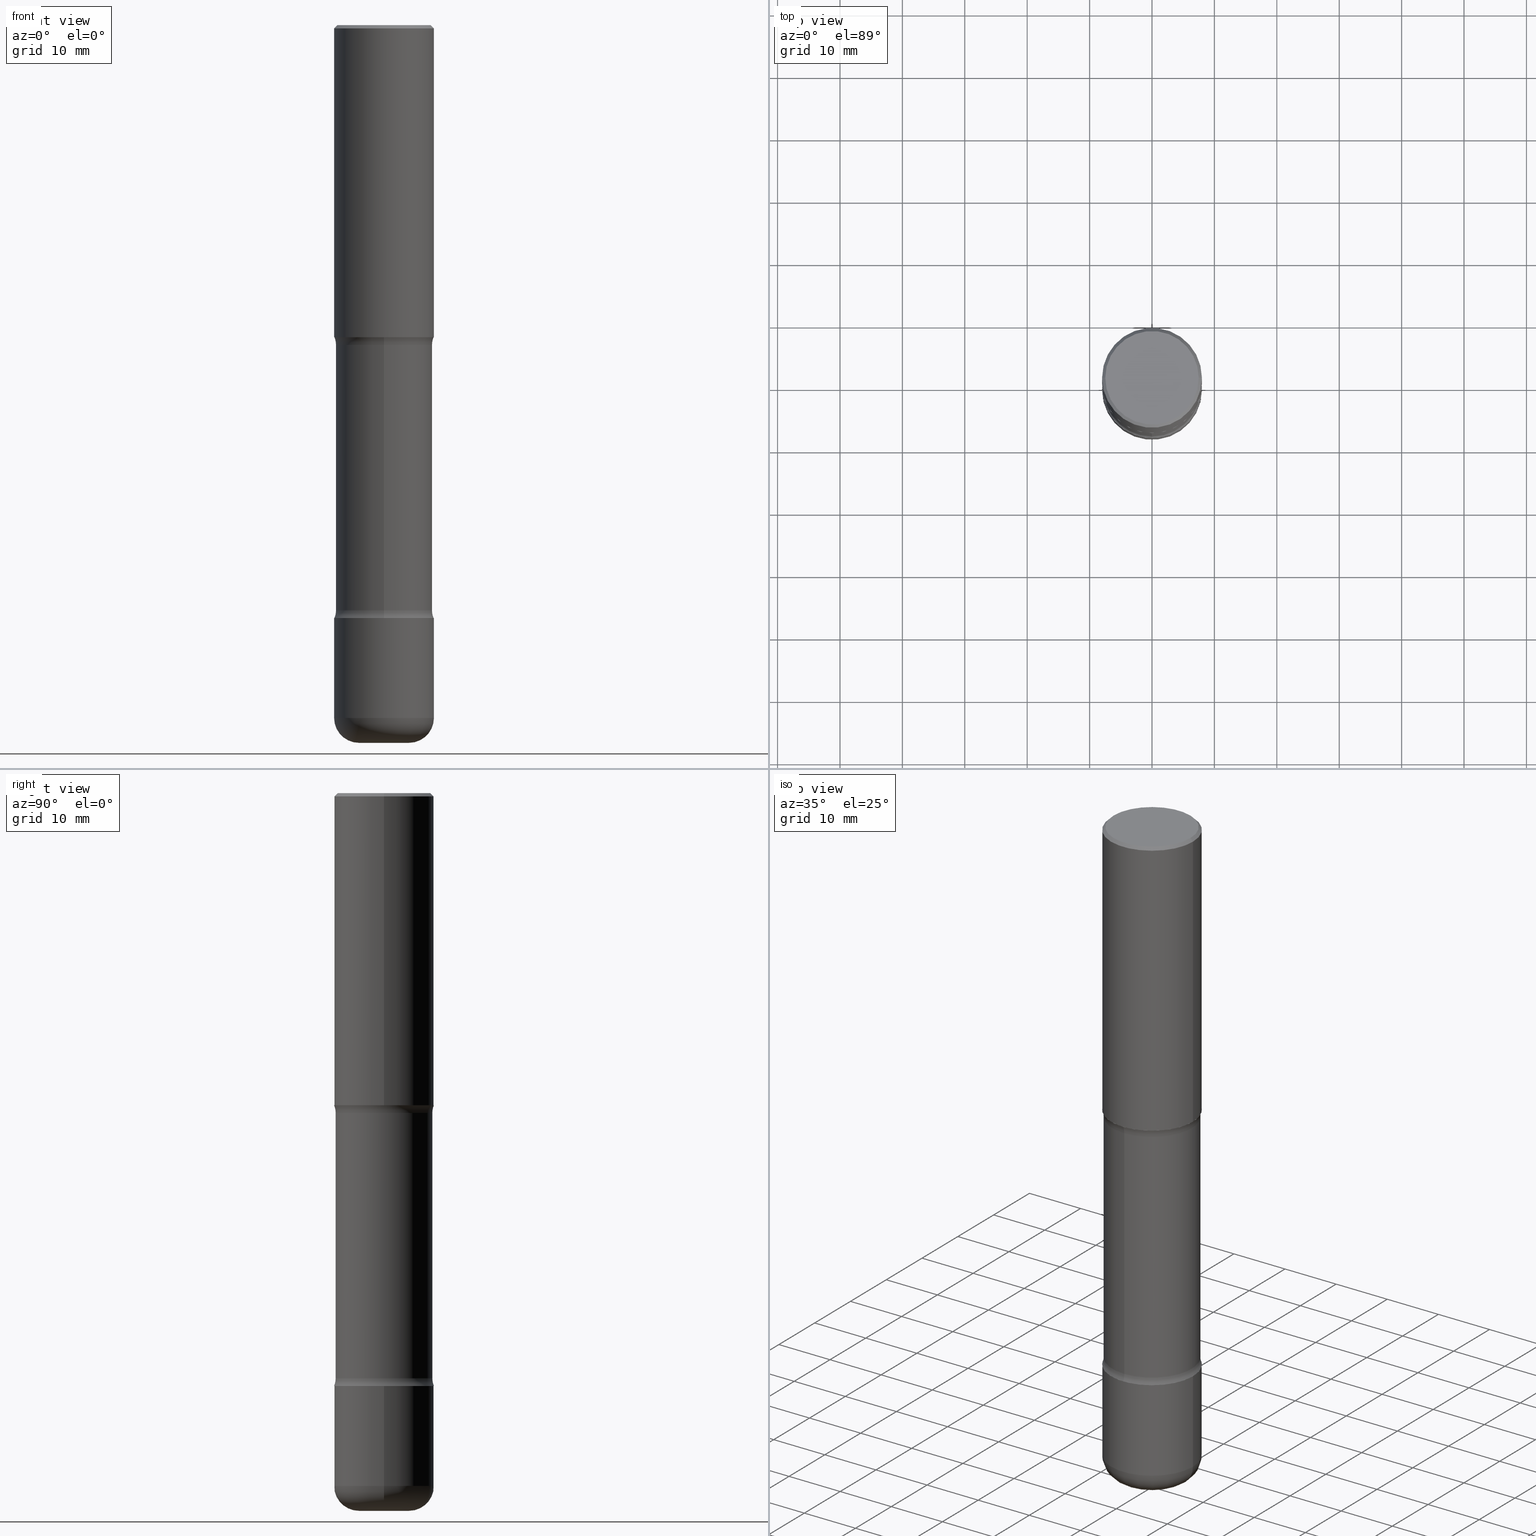
[diagram: canonical four-view strip — front | top / right | iso, engineering-drawing reading convention]
A machine part, canonical four-view strip (front | top / right | iso — engineering-drawing reading convention). The complete STEP part file that produces these views, byte-faithful:
ISO-10303-21;
HEADER;
FILE_DESCRIPTION (( 'STEP AP203' ),
    '1' );
FILE_NAME ('46936.STEP',
    '2024-03-02T06:02:06',
    ( '' ),
    ( '' ),
    'SwSTEP 2.0',
    'SolidWorks 2023',
    '' );
FILE_SCHEMA (( 'CONFIG_CONTROL_DESIGN' ));
ENDSEC;

DATA;
#1 = DATE_TIME_ROLE ( 'classification_date' ) ;
#2 = EDGE_CURVE ( 'NONE', #549, #256, #137, .T. ) ;
#3 = ORIENTED_EDGE ( 'NONE', *, *, #206, .T. ) ;
#4 = CARTESIAN_POINT ( 'NONE',  ( -2.950014139041709158E-15, -0.4300000000000070988, -2.017372256956272647 ) ) ;
#5 = FACE_OUTER_BOUND ( 'NONE', #384, .T. ) ;
#6 = VECTOR ( 'NONE', #373, 39.37007874015748143 ) ;
#7 = CONICAL_SURFACE ( 'NONE', #35, 0.3149499999999998967, 0.7853981633974460586 ) ;
#8 = CARTESIAN_POINT ( 'NONE',  ( 0.000000000000000000, 0.000000000000000000, 0.000000000000000000 ) ) ;
#9 = VERTEX_POINT ( 'NONE', #154 ) ;
#10 = EDGE_LOOP ( 'NONE', ( #198, #71, #106, #33 ) ) ;
#11 = APPROVAL ( #51, 'UNSPECIFIED' ) ;
#12 = FACE_OUTER_BOUND ( 'NONE', #220, .T. ) ;
#13 = VERTEX_POINT ( 'NONE', #327 ) ;
#14 = CARTESIAN_POINT ( 'NONE',  ( 1.112359725384078225E-28, -1.573429045124212958E-14, -4.527600000000000513 ) ) ;
#15 = DIRECTION ( 'NONE',  ( -2.445468806185136597E-29, 3.491481338843145583E-15, 1.000000000000000000 ) ) ;
#16 = EDGE_CURVE ( 'NONE', #300, #348, #167, .T. ) ;
#17 = PLANE ( 'NONE',  #21 ) ;
#18 = DIRECTION ( 'NONE',  ( 6.982962677686265922E-15, 1.000000000000000000, -3.469564049740289220E-15 ) ) ;
#19 = CARTESIAN_POINT ( 'NONE',  ( -2.950014139041668531E-15, -0.4300000000000129829, -3.691327743043725018 ) ) ;
#20 = ADVANCED_FACE ( 'NONE', ( #243 ), #156, .F. ) ;
#21 = AXIS2_PLACEMENT_3D ( 'NONE', #286, #62, #200 ) ;
#22 = AXIS2_PLACEMENT_3D ( 'NONE', #374, #105, #534 ) ;
#23 = DIRECTION ( 'NONE',  ( 2.510864649412157880E-29, -3.397830769241806549E-15, -1.000000000000000000 ) ) ;
#24 = EDGE_CURVE ( 'NONE', #382, #209, #275, .T. ) ;
#25 = ORIENTED_EDGE ( 'NONE', *, *, #518, .F. ) ;
#26 = DIRECTION ( 'NONE',  ( 6.982962677686265922E-15, 1.000000000000000000, -3.397830769241806549E-15 ) ) ;
#27 = DIRECTION ( 'NONE',  ( 1.000000000000000000, -6.982962677686267499E-15, 4.876053491004736589E-29 ) ) ;
#28 = ORIENTED_EDGE ( 'NONE', *, *, #550, .F. ) ;
#29 = PRODUCT_DEFINITION_SHAPE ( 'NONE', 'NONE',  #56 ) ;
#30 = ORIENTED_EDGE ( 'NONE', *, *, #434, .F. ) ;
#31 = AXIS2_PLACEMENT_3D ( 'NONE', #14, #289, #525 ) ;
#32 = ORIENTED_EDGE ( 'NONE', *, *, #556, .F. ) ;
#33 = ORIENTED_EDGE ( 'NONE', *, *, #441, .F. ) ;
#34 = ADVANCED_FACE ( 'NONE', ( #109 ), #63, .T. ) ;
#35 = AXIS2_PLACEMENT_3D ( 'NONE', #211, #163, #378 ) ;
#36 = ORIENTED_EDGE ( 'NONE', *, *, #134, .T. ) ;
#37 =( LENGTH_UNIT ( ) NAMED_UNIT ( * ) SI_UNIT ( $, .METRE. ) );
#38 = DIRECTION ( 'NONE',  ( 1.000000000000000000, -6.982962677686265922E-15, 0.000000000000000000 ) ) ;
#39 = DIRECTION ( 'NONE',  ( 1.000000000000000000, 0.000000000000000000, 0.000000000000000000 ) ) ;
#40 = CIRCLE ( 'NONE', #501, 0.3149500000000002298 ) ;
#41 = CC_DESIGN_APPROVAL ( #11, ( #460 ) ) ;
#42 = DIRECTION ( 'NONE',  ( -1.000000000000000000, 6.982962677686265922E-15, -4.883557194083112901E-29 ) ) ;
#43 = PERSON_AND_ORGANIZATION ( #249, #260 ) ;
#44 = DIRECTION ( 'NONE',  ( -2.445468806185136597E-29, 3.491481338843145583E-15, 1.000000000000000000 ) ) ;
#45 = CARTESIAN_POINT ( 'NONE',  ( 4.813905344975441835E-29, -6.872981015512731707E-15, -1.968500000000000139 ) ) ;
#46 = DATE_AND_TIME ( #517, #395 ) ;
#47 = CARTESIAN_POINT ( 'NONE',  ( 2.199284095337382168E-15, 0.3149499999999871291, -3.740200000000001079 ) ) ;
#48 = ADVANCED_FACE ( 'NONE', ( #339 ), #126, .T. ) ;
#49 = AXIS2_PLACEMENT_3D ( 'NONE', #8, #164, #218 ) ;
#50 = CIRCLE ( 'NONE', #117, 0.1574999999999998346 ) ;
#51 = APPROVAL_STATUS ( 'not_yet_approved' ) ;
#52 = DIRECTION ( 'NONE',  ( -2.445468806185136597E-29, 3.491481338843145583E-15, 1.000000000000000000 ) ) ;
#53 = ORIENTED_EDGE ( 'NONE', *, *, #434, .T. ) ;
#54 = DATE_AND_TIME ( #399, #452 ) ;
#55 = LINE ( 'NONE', #486, #360 ) ;
#56 = PRODUCT_DEFINITION ( 'UNKNOWN', '', #460, #398 ) ;
#57 = CARTESIAN_POINT ( 'NONE',  ( -3.131554243005663153E-46, 4.471029511141347348E-32, 1.280553747030124924E-17 ) ) ;
#58 = AXIS2_PLACEMENT_3D ( 'NONE', #45, #359, #308 ) ;
#59 = ADVANCED_FACE ( 'NONE', ( #438 ), #92, .F. ) ;
#60 = CARTESIAN_POINT ( 'NONE',  ( 9.023830806565153848E-29, -1.289277884509281722E-14, -3.691327743043726795 ) ) ;
#61 = DIRECTION ( 'NONE',  ( 6.982962677686265922E-15, 1.000000000000000000, -3.397830769241806549E-15 ) ) ;
#62 = DIRECTION ( 'NONE',  ( -2.510864649412157319E-29, 3.397830769241806549E-15, 1.000000000000000000 ) ) ;
#63 = CYLINDRICAL_SURFACE ( 'NONE', #49, 0.3149500000000002853 ) ;
#64 = CARTESIAN_POINT ( 'NONE',  ( 1.068694322990966674E-28, -1.525812259887843213E-14, -4.370100000000000762 ) ) ;
#65 = EDGE_CURVE ( 'NONE', #457, #257, #40, .T. ) ;
#66 = DIRECTION ( 'NONE',  ( 1.000000000000000000, -6.982962677686267499E-15, 4.876053491004736589E-29 ) ) ;
#67 = ORIENTED_EDGE ( 'NONE', *, *, #171, .F. ) ;
#68 = CIRCLE ( 'NONE', #394, 0.2949499999999998789 ) ;
#69 = CC_DESIGN_APPROVAL ( #516, ( #56 ) ) ;
#70 = FACE_OUTER_BOUND ( 'NONE', #463, .T. ) ;
#71 = ORIENTED_EDGE ( 'NONE', *, *, #326, .T. ) ;
#72 = LINE ( 'NONE', #155, #149 ) ;
#73 = ORIENTED_EDGE ( 'NONE', *, *, #287, .F. ) ;
#74 = VERTEX_POINT ( 'NONE', #357 ) ;
#75 = PLANE ( 'NONE',  #527 ) ;
#76 = EDGE_LOOP ( 'NONE', ( #409, #553 ) ) ;
#77 = EDGE_LOOP ( 'NONE', ( #25, #427, #436, #514 ) ) ;
#78 = CARTESIAN_POINT ( 'NONE',  ( 4.820755151858623476E-29, -7.204961388123744804E-15, -2.017372256956273979 ) ) ;
#79 = EDGE_LOOP ( 'NONE', ( #343, #379 ) ) ;
#80 = CC_DESIGN_SECURITY_CLASSIFICATION ( #370, ( #460 ) ) ;
#81 = CARTESIAN_POINT ( 'NONE',  ( 4.698043529530127941E-29, -7.038901729675425288E-15, -1.968500000000000139 ) ) ;
#82 = ORIENTED_EDGE ( 'NONE', *, *, #307, .F. ) ;
#83 = DIRECTION ( 'NONE',  ( -2.445468806185136597E-29, 3.491481338843145583E-15, 1.000000000000000000 ) ) ;
#84 = CC_DESIGN_PERSON_AND_ORGANIZATION_ASSIGNMENT ( #150, #319, ( #460 ) ) ;
#85 = ORIENTED_EDGE ( 'NONE', *, *, #335, .F. ) ;
#86 = CARTESIAN_POINT ( 'NONE',  ( 0.3149500000000000077, -2.199284095337289871E-15, 1.535751875536930130E-29 ) ) ;
#87 = AXIS2_PLACEMENT_3D ( 'NONE', #423, #337, #476 ) ;
#88 = CIRCLE ( 'NONE', #22, 0.3149500000000002298 ) ;
#89 = MANIFOLD_SOLID_BREP ( 'Body-Move/Copy2[4]', #402 ) ;
#90 = DIRECTION ( 'NONE',  ( 6.982962677686265922E-15, 1.000000000000000000, -3.397830769241806549E-15 ) ) ;
#91 = CARTESIAN_POINT ( 'NONE',  ( 0.3149500000000001743, -9.072265110850023156E-15, -1.968500000000000139 ) ) ;
#92 = PLANE ( 'NONE',  #58 ) ;
#93 = COORDINATED_UNIVERSAL_TIME_OFFSET ( 5, 0, .BEHIND. ) ;
#94 = DIRECTION ( 'NONE',  ( 6.982962677686265922E-15, 1.000000000000000000, -3.397830769241806549E-15 ) ) ;
#95 = AXIS2_PLACEMENT_3D ( 'NONE', #277, #52, #314 ) ;
#96 = CIRCLE ( 'NONE', #536, 0.3049999999999999378 ) ;
#97 = CALENDAR_DATE ( 2024, 2, 3 ) ;
#98 = CARTESIAN_POINT ( 'NONE',  ( 4.890937612370289799E-31, -6.982962677686315028E-17, -0.02000000000000006981 ) ) ;
#99 = ADVANCED_FACE ( 'NONE', ( #545 ), #508, .T. ) ;
#100 = APPROVAL_ROLE ( '' ) ;
#101 = MANIFOLD_SOLID_BREP ( 'Body-Move/Copy2[1]', #305 ) ;
#102 = LINE ( 'NONE', #235, #385 ) ;
#103 = EDGE_LOOP ( 'NONE', ( #85, #507, #238, #67 ) ) ;
#104 = ORIENTED_EDGE ( 'NONE', *, *, #532, .F. ) ;
#105 = DIRECTION ( 'NONE',  ( -2.445468806185136597E-29, 3.491481338843145583E-15, 1.000000000000000000 ) ) ;
#106 = ORIENTED_EDGE ( 'NONE', *, *, #424, .T. ) ;
#107 = AXIS2_PLACEMENT_3D ( 'NONE', #400, #273, #315 ) ;
#108 = CIRCLE ( 'NONE', #429, 0.3049999999999999933 ) ;
#109 = FACE_OUTER_BOUND ( 'NONE', #77, .T. ) ;
#110 = FACE_OUTER_BOUND ( 'NONE', #103, .T. ) ;
#111 = ADVANCED_FACE ( 'NONE', ( #414 ), #17, .F. ) ;
#112 = DIRECTION ( 'NONE',  ( -1.000000000000000000, 6.982962677686265922E-15, -4.876176775795935793E-29 ) ) ;
#113 = ORIENTED_EDGE ( 'NONE', *, *, #556, .T. ) ;
#114 = ORIENTED_EDGE ( 'NONE', *, *, #550, .T. ) ;
#115 = ADVANCED_BREP_SHAPE_REPRESENTATION ( '46936', ( #101, #143, #89, #252 ), #189 ) ;
#116 = DIRECTION ( 'NONE',  ( 1.000000000000000000, -6.860497997771530774E-15, 4.841945768327149582E-29 ) ) ;
#117 = AXIS2_PLACEMENT_3D ( 'NONE', #430, #344, #551 ) ;
#118 = DIRECTION ( 'NONE',  ( -2.445468806185136877E-29, 3.491481338843145188E-15, 1.000000000000000000 ) ) ;
#119 = PRODUCT ( '46936', '46936', '', ( #515 ) ) ;
#120 = CARTESIAN_POINT ( 'NONE',  ( 3.002673951405185326E-15, 0.4299999999999871703, -3.691327743043728571 ) ) ;
#121 = EDGE_LOOP ( 'NONE', ( #499, #212, #131, #36 ) ) ;
#122 = EDGE_CURVE ( 'NONE', #74, #422, #519, .T. ) ;
#123 = DIRECTION ( 'NONE',  ( 6.982962677686266711E-15, 1.000000000000000000, -3.582751467100674095E-15 ) ) ;
#124 = DIRECTION ( 'NONE',  ( -2.445468806185136597E-29, 3.491481338843145583E-15, 1.000000000000000000 ) ) ;
#125 = ORIENTED_EDGE ( 'NONE', *, *, #346, .F. ) ;
#126 = CYLINDRICAL_SURFACE ( 'NONE', #450, 0.3049999999999999378 ) ;
#127 = AXIS2_PLACEMENT_3D ( 'NONE', #147, #559, #362 ) ;
#128 = ADVANCED_FACE ( 'NONE', ( #70 ), #223, .T. ) ;
#129 = AXIS2_PLACEMENT_3D ( 'NONE', #182, #83, #425 ) ;
#130 = FACE_OUTER_BOUND ( 'NONE', #281, .T. ) ;
#131 = ORIENTED_EDGE ( 'NONE', *, *, #251, .T. ) ;
#132 = VERTEX_POINT ( 'NONE', #153 ) ;
#133 = DIRECTION ( 'NONE',  ( 2.438088387897960049E-29, -3.491481338843145188E-15, -1.000000000000000000 ) ) ;
#134 = EDGE_CURVE ( 'NONE', #348, #300, #341, .T. ) ;
#135 = PERSON_AND_ORGANIZATION ( #249, #260 ) ;
#136 = ORIENTED_EDGE ( 'NONE', *, *, #518, .T. ) ;
#137 = CIRCLE ( 'NONE', #468, 0.3149500000000002853 ) ;
#138 = FACE_OUTER_BOUND ( 'NONE', #261, .T. ) ;
#139 = ORIENTED_EDGE ( 'NONE', *, *, #16, .F. ) ;
#140 = APPROVAL_PERSON_ORGANIZATION ( #224, #232, #558 ) ;
#141 = EDGE_CURVE ( 'NONE', #417, #382, #282, .T. ) ;
#142 = DIRECTION ( 'NONE',  ( -6.982962677686267499E-15, -1.000000000000000000, 0.000000000000000000 ) ) ;
#143 = MANIFOLD_SOLID_BREP ( 'Body-Move/Copy2[2]', #160 ) ;
#144 = EDGE_CURVE ( 'NONE', #415, #297, #55, .T. ) ;
#145 = APPROVAL_DATE_TIME ( #192, #516 ) ;
#146 = CARTESIAN_POINT ( 'NONE',  ( -0.1574500000000002564, -1.413937306142415374E-14, -4.370100000000000762 ) ) ;
#147 = CARTESIAN_POINT ( 'NONE',  ( 1.068694322990966674E-28, -1.525812259887843213E-14, -4.370100000000000762 ) ) ;
#148 = VECTOR ( 'NONE', #118, 39.37007874015748143 ) ;
#149 = VECTOR ( 'NONE', #201, 39.37007874015748143 ) ;
#150 = PERSON_AND_ORGANIZATION ( #249, #260 ) ;
#151 = EDGE_LOOP ( 'NONE', ( #32, #3, #490, #510 ) ) ;
#152 = DIRECTION ( 'NONE',  ( -1.000000000000000000, 7.105427357601005014E-15, 0.000000000000000000 ) ) ;
#153 = CARTESIAN_POINT ( 'NONE',  ( -0.3149500000000002298, -1.192062620493334568E-14, -3.740200000000000191 ) ) ;
#154 = CARTESIAN_POINT ( 'NONE',  ( -0.2949499999999998789, 2.094539655171994924E-15, 1.280553747028672311E-17 ) ) ;
#155 = CARTESIAN_POINT ( 'NONE',  ( -0.3149500000000000077, 2.237854346276435590E-15, -1.549218606675782676E-29 ) ) ;
#156 = PLANE ( 'NONE',  #474 ) ;
#157 = CARTESIAN_POINT ( 'NONE',  ( -3.131554243005663153E-46, 4.471029511141347348E-32, 1.280553747030124924E-17 ) ) ;
#158 = AXIS2_PLACEMENT_3D ( 'NONE', #81, #215, #247 ) ;
#159 = DIRECTION ( 'NONE',  ( 1.000000000000000000, -6.982962677686265922E-15, 0.000000000000000000 ) ) ;
#160 = CLOSED_SHELL ( 'NONE', ( #210, #391, #349, #20, #203, #99 ) ) ;
#161 = TOROIDAL_SURFACE ( 'NONE', #306, 0.1574500000000002564, 0.1574999999999998346 ) ;
#162 = FACE_OUTER_BOUND ( 'NONE', #505, .T. ) ;
#163 = DIRECTION ( 'NONE',  ( 2.445468806185136597E-29, -3.491481338843145583E-15, -1.000000000000000000 ) ) ;
#164 = DIRECTION ( 'NONE',  ( -2.445468806185136597E-29, 3.491481338843145583E-15, 1.000000000000000000 ) ) ;
#165 = LINE ( 'NONE', #242, #148 ) ;
#166 = EDGE_CURVE ( 'NONE', #417, #13, #494, .T. ) ;
#167 = CIRCLE ( 'NONE', #213, 0.3149500000000003408 ) ;
#168 = CIRCLE ( 'NONE', #418, 0.3149500000000001743 ) ;
#169 = DIRECTION ( 'NONE',  ( 1.000000000000000000, -6.982962677686267499E-15, 4.876176775795936353E-29 ) ) ;
#170 = ORIENTED_EDGE ( 'NONE', *, *, #404, .T. ) ;
#171 = EDGE_CURVE ( 'NONE', #9, #333, #102, .T. ) ;
#172 =( NAMED_UNIT ( * ) SI_UNIT ( $, .STERADIAN. ) SOLID_ANGLE_UNIT ( ) );
#173 = EDGE_LOOP ( 'NONE', ( #352, #262, #459, #30 ) ) ;
#174 = EDGE_LOOP ( 'NONE', ( #426, #113, #464, #217 ) ) ;
#175 = EDGE_CURVE ( 'NONE', #297, #333, #320, .T. ) ;
#176 =( CONVERSION_BASED_UNIT ( 'INCH', #432 ) LENGTH_UNIT ( ) NAMED_UNIT ( #393 ) );
#177 = ORIENTED_EDGE ( 'NONE', *, *, #175, .F. ) ;
#178 = DIRECTION ( 'NONE',  ( 2.510864649412157880E-29, -3.397830769241806549E-15, -1.000000000000000000 ) ) ;
#179 = AXIS2_PLACEMENT_3D ( 'NONE', #535, #375, #159 ) ;
#180 = CIRCLE ( 'NONE', #313, 0.1249999999999999584 ) ;
#181 = ORIENTED_EDGE ( 'NONE', *, *, #267, .F. ) ;
#182 = CARTESIAN_POINT ( 'NONE',  ( 1.107210456688382522E-28, -1.580803090974622705E-14, -4.527600000000000513 ) ) ;
#183 = CC_DESIGN_DATE_AND_TIME_ASSIGNMENT ( #184, #1, ( #370 ) ) ;
#184 = DATE_AND_TIME ( #274, #439 ) ;
#185 = EDGE_CURVE ( 'NONE', #132, #293, #437, .T. ) ;
#186 = APPROVAL_DATE_TIME ( #54, #232 ) ;
#187 = TOROIDAL_SURFACE ( 'NONE', #484, 0.4299999999999999378, 0.1249999999999999861 ) ;
#188 = CARTESIAN_POINT ( 'NONE',  ( 0.000000000000000000, 0.000000000000000000, 0.000000000000000000 ) ) ;
#189 =( GEOMETRIC_REPRESENTATION_CONTEXT ( 3 ) GLOBAL_UNCERTAINTY_ASSIGNED_CONTEXT ( ( #266 ) ) GLOBAL_UNIT_ASSIGNED_CONTEXT ( ( #176, #351, #172 ) ) REPRESENTATION_CONTEXT ( 'NONE', 'WORKASPACE' ) );
#190 = DIRECTION ( 'NONE',  ( -2.445468806185136597E-29, 3.491481338843145583E-15, 1.000000000000000000 ) ) ;
#191 = CC_DESIGN_DATE_AND_TIME_ASSIGNMENT ( #46, #226, ( #56 ) ) ;
#192 = DATE_AND_TIME ( #481, #475 ) ;
#193 = DIRECTION ( 'NONE',  ( 6.860497997771532351E-15, 1.000000000000000000, 0.000000000000000000 ) ) ;
#194 = ADVANCED_FACE ( 'NONE', ( #138 ), #467, .F. ) ;
#195 = AXIS2_PLACEMENT_3D ( 'NONE', #64, #500, #290 ) ;
#196 = CARTESIAN_POINT ( 'NONE',  ( 2.059624841783563274E-15, 0.2949499999999998789, -1.023409652156634744E-15 ) ) ;
#197 = FACE_OUTER_BOUND ( 'NONE', #541, .T. ) ;
#198 = ORIENTED_EDGE ( 'NONE', *, *, #65, .F. ) ;
#199 = FACE_OUTER_BOUND ( 'NONE', #347, .T. ) ;
#200 = DIRECTION ( 'NONE',  ( -6.982962677686265922E-15, -1.000000000000000000, 3.397830769241806549E-15 ) ) ;
#201 = DIRECTION ( 'NONE',  ( -2.445468806185136877E-29, 3.491481338843145188E-15, 1.000000000000000000 ) ) ;
#202 = AXIS2_PLACEMENT_3D ( 'NONE', #60, #329, #495 ) ;
#203 = ADVANCED_FACE ( 'NONE', ( #197 ), #325, .F. ) ;
#204 = CARTESIAN_POINT ( 'NONE',  ( 2.129803616694359388E-15, 0.3049999999999927769, -2.017372256956274867 ) ) ;
#205 = ORIENTED_EDGE ( 'NONE', *, *, #404, .F. ) ;
#206 = EDGE_CURVE ( 'NONE', #13, #300, #312, .T. ) ;
#207 = CARTESIAN_POINT ( 'NONE',  ( 0.3149500000000002298, -1.525812259887842581E-14, -3.740200000000000191 ) ) ;
#208 = EDGE_LOOP ( 'NONE', ( #296, #136, #205, #82 ) ) ;
#209 = VERTEX_POINT ( 'NONE', #407 ) ;
#210 = ADVANCED_FACE ( 'NONE', ( #5 ), #526, .T. ) ;
#211 = CARTESIAN_POINT ( 'NONE',  ( 4.890937612370289799E-31, -6.982962677686315028E-17, -0.02000000000000006981 ) ) ;
#212 = ORIENTED_EDGE ( 'NONE', *, *, #166, .F. ) ;
#213 = AXIS2_PLACEMENT_3D ( 'NONE', #283, #533, #18 ) ;
#214 = CC_DESIGN_APPROVAL ( #232, ( #370 ) ) ;
#215 = DIRECTION ( 'NONE',  ( 2.510864649412157880E-29, -3.397830769241806549E-15, -1.000000000000000000 ) ) ;
#216 = CARTESIAN_POINT ( 'NONE',  ( 1.107210456688382522E-28, -1.580803090974622705E-14, -4.527600000000000513 ) ) ;
#217 = ORIENTED_EDGE ( 'NONE', *, *, #424, .F. ) ;
#218 = DIRECTION ( 'NONE',  ( 1.000000000000000000, -6.982962677686267499E-15, 4.876176775795936353E-29 ) ) ;
#219 = ADVANCED_FACE ( 'NONE', ( #225 ), #187, .F. ) ;
#220 = EDGE_LOOP ( 'NONE', ( #334, #548, #264, #104 ) ) ;
#221 = AXIS2_PLACEMENT_3D ( 'NONE', #146, #403, #152 ) ;
#222 = LINE ( 'NONE', #440, #410 ) ;
#223 = CYLINDRICAL_SURFACE ( 'NONE', #31, 0.3049999999999999378 ) ;
#224 = PERSON_AND_ORGANIZATION ( #249, #260 ) ;
#225 = FACE_OUTER_BOUND ( 'NONE', #121, .T. ) ;
#226 = DATE_TIME_ROLE ( 'creation_date' ) ;
#227 = AXIS2_PLACEMENT_3D ( 'NONE', #524, #483, #94 ) ;
#228 = AXIS2_PLACEMENT_3D ( 'NONE', #255, #462, #26 ) ;
#229 = DIRECTION ( 'NONE',  ( -0.7071067811865459074, 2.468850131082240100E-15, -0.7071067811865491270 ) ) ;
#230 = CIRCLE ( 'NONE', #195, 0.3149500000000002853 ) ;
#231 = APPROVAL_STATUS ( 'not_yet_approved' ) ;
#232 = APPROVAL ( #231, 'UNSPECIFIED' ) ;
#233 = DIRECTION ( 'NONE',  ( -2.438088387897960049E-29, 3.491481338843145188E-15, 1.000000000000000000 ) ) ;
#234 = EDGE_CURVE ( 'NONE', #13, #209, #237, .T. ) ;
#235 = CARTESIAN_POINT ( 'NONE',  ( -0.3149499999999998967, 2.129454468560425784E-15, -0.02000000000000006981 ) ) ;
#236 = ORIENTED_EDGE ( 'NONE', *, *, #441, .T. ) ;
#237 = LINE ( 'NONE', #371, #259 ) ;
#238 = ORIENTED_EDGE ( 'NONE', *, *, #175, .T. ) ;
#239 = AXIS2_PLACEMENT_3D ( 'NONE', #4, #271, #193 ) ;
#240 = CIRCLE ( 'NONE', #285, 0.3149500000000002298 ) ;
#241 = ORIENTED_EDGE ( 'NONE', *, *, #134, .F. ) ;
#242 = CARTESIAN_POINT ( 'NONE',  ( 0.3149500000000002853, -2.199284095337291843E-15, 1.535751875536931531E-29 ) ) ;
#243 = FACE_OUTER_BOUND ( 'NONE', #79, .T. ) ;
#244 = CARTESIAN_POINT ( 'NONE',  ( 9.146542428893648262E-29, -1.305883850354113437E-14, -3.740200000000000191 ) ) ;
#245 = ORIENTED_EDGE ( 'NONE', *, *, #122, .T. ) ;
#246 = ADVANCED_FACE ( 'NONE', ( #12 ), #368, .T. ) ;
#247 = DIRECTION ( 'NONE',  ( 6.982962677686265922E-15, 1.000000000000000000, -3.469564049740289220E-15 ) ) ;
#248 = DIRECTION ( 'NONE',  ( 1.000000000000000000, -6.982962677686268288E-15, 4.883557194083114022E-29 ) ) ;
#249 = PERSON ( 'UNSPECIFIED', 'UNSPECIFIED', 'UNSPECIFIED', ('UNSPECIFIED'), ('UNSPECIFIED'), ('UNSPECIFIED') ) ;
#250 = AXIS2_PLACEMENT_3D ( 'NONE', #489, #190, #364 ) ;
#251 = EDGE_CURVE ( 'NONE', #417, #348, #444, .T. ) ;
#252 = AXIS2_PLACEMENT_3D ( 'NONE', #265, #435, #39 ) ;
#253 = VERTEX_POINT ( 'NONE', #91 ) ;
#254 = CARTESIAN_POINT ( 'NONE',  ( 2.199284095337339175E-15, 0.3149499999999932909, -1.968500000000001249 ) ) ;
#255 = CARTESIAN_POINT ( 'NONE',  ( 9.027026849019217051E-29, -1.288820193039115935E-14, -3.691327743043726795 ) ) ;
#256 = VERTEX_POINT ( 'NONE', #443 ) ;
#257 = VERTEX_POINT ( 'NONE', #47 ) ;
#258 = EDGE_LOOP ( 'NONE', ( #181, #245, #511, #125 ) ) ;
#259 = VECTOR ( 'NONE', #529, 39.37007874015748143 ) ;
#260 = ORGANIZATION ( 'UNSPECIFIED', 'UNSPECIFIED', '' ) ;
#261 = EDGE_LOOP ( 'NONE', ( #389, #291, #236, #466 ) ) ;
#262 = ORIENTED_EDGE ( 'NONE', *, *, #270, .T. ) ;
#263 = DIRECTION ( 'NONE',  ( -2.445468806185136877E-29, 3.491481338843145188E-15, 1.000000000000000000 ) ) ;
#264 = ORIENTED_EDGE ( 'NONE', *, *, #2, .F. ) ;
#265 = CARTESIAN_POINT ( 'NONE',  ( 0.000000000000000000, 0.000000000000000000, 0.000000000000000000 ) ) ;
#266 = UNCERTAINTY_MEASURE_WITH_UNIT (LENGTH_MEASURE( 1.000000000000000082E-05 ), #176, 'distance_accuracy_value', 'NONE');
#267 = EDGE_CURVE ( 'NONE', #74, #256, #512, .T. ) ;
#268 = AXIS2_PLACEMENT_3D ( 'NONE', #216, #133, #388 ) ;
#269 = DIRECTION ( 'NONE',  ( -2.445468806185136877E-29, 3.491481338843145188E-15, 1.000000000000000000 ) ) ;
#270 = EDGE_CURVE ( 'NONE', #503, #253, #353, .T. ) ;
#271 = DIRECTION ( 'NONE',  ( 1.000000000000000000, -6.860497997771530774E-15, 4.841945768327149582E-29 ) ) ;
#272 = COORDINATED_UNIVERSAL_TIME_OFFSET ( 5, 0, .BEHIND. ) ;
#273 = DIRECTION ( 'NONE',  ( 2.510864649412157880E-29, -3.397830769241806549E-15, -1.000000000000000000 ) ) ;
#274 = CALENDAR_DATE ( 2024, 2, 3 ) ;
#275 = CIRCLE ( 'NONE', #202, 0.3049999999999999378 ) ;
#276 = CIRCLE ( 'NONE', #129, 0.1574500000000002842 ) ;
#277 = CARTESIAN_POINT ( 'NONE',  ( 9.146542428893648262E-29, -1.305883850354113437E-14, -3.740200000000000191 ) ) ;
#278 = APPROVAL_ROLE ( '' ) ;
#279 = DIRECTION ( 'NONE',  ( 1.000000000000000000, -6.982962677686265922E-15, 0.000000000000000000 ) ) ;
#280 = PERSON_AND_ORGANIZATION ( #249, #260 ) ;
#281 = EDGE_LOOP ( 'NONE', ( #471, #304 ) ) ;
#282 = LINE ( 'NONE', #449, #6 ) ;
#283 = CARTESIAN_POINT ( 'NONE',  ( 4.698043529530127941E-29, -7.038901729675425288E-15, -1.968500000000000139 ) ) ;
#284 = CARTESIAN_POINT ( 'NONE',  ( 0.3149499999999998967, -2.230543471175006266E-15, -0.02000000000000006981 ) ) ;
#285 = AXIS2_PLACEMENT_3D ( 'NONE', #330, #23, #531 ) ;
#286 = CARTESIAN_POINT ( 'NONE',  ( 9.146542428893648262E-29, -1.305883850354113437E-14, -3.740200000000000191 ) ) ;
#287 = EDGE_CURVE ( 'NONE', #9, #415, #68, .T. ) ;
#288 = DIRECTION ( 'NONE',  ( 2.510864649412157880E-29, -3.397830769241806549E-15, -1.000000000000000000 ) ) ;
#289 = DIRECTION ( 'NONE',  ( 2.510864649412157880E-29, -3.397830769241806549E-15, -1.000000000000000000 ) ) ;
#290 = DIRECTION ( 'NONE',  ( 1.000000000000000000, -6.982962677686263555E-15, 0.000000000000000000 ) ) ;
#291 = ORIENTED_EDGE ( 'NONE', *, *, #396, .F. ) ;
#292 = CC_DESIGN_PERSON_AND_ORGANIZATION_ASSIGNMENT ( #43, #448, ( #56 ) ) ;
#293 = VERTEX_POINT ( 'NONE', #207 ) ;
#294 = LOCAL_TIME ( 1, 2, 6.000000000000000000, #479 ) ;
#295 = DIRECTION ( 'NONE',  ( -2.445468806185136597E-29, 3.491481338843145583E-15, 1.000000000000000000 ) ) ;
#296 = ORIENTED_EDGE ( 'NONE', *, *, #2, .T. ) ;
#297 = VERTEX_POINT ( 'NONE', #284 ) ;
#298 = CARTESIAN_POINT ( 'NONE',  ( 1.112359725384078225E-28, -1.573429045124212958E-14, -4.527600000000000513 ) ) ;
#299 = CYLINDRICAL_SURFACE ( 'NONE', #361, 0.3149500000000002853 ) ;
#300 = VERTEX_POINT ( 'NONE', #492 ) ;
#301 = ORIENTED_EDGE ( 'NONE', *, *, #141, .F. ) ;
#302 = CARTESIAN_POINT ( 'NONE',  ( 0.3149500000000001743, -1.745740669421572357E-14, -4.370100000000000762 ) ) ;
#303 = ORIENTED_EDGE ( 'NONE', *, *, #171, .T. ) ;
#304 = ORIENTED_EDGE ( 'NONE', *, *, #122, .F. ) ;
#305 = CLOSED_SHELL ( 'NONE', ( #522, #246, #482, #311, #34, #309 ) ) ;
#306 = AXIS2_PLACEMENT_3D ( 'NONE', #381, #15, #248 ) ;
#307 = EDGE_CURVE ( 'NONE', #549, #293, #165, .T. ) ;
#308 = DIRECTION ( 'NONE',  ( 6.982962677686265922E-15, 1.000000000000000000, -3.397830769241806549E-15 ) ) ;
#309 = ADVANCED_FACE ( 'NONE', ( #162 ), #75, .F. ) ;
#310 = PERSON_AND_ORGANIZATION_ROLE ( 'design_owner' ) ;
#311 = ADVANCED_FACE ( 'NONE', ( #413 ), #161, .T. ) ;
#312 = CIRCLE ( 'NONE', #239, 0.1249999999999999584 ) ;
#313 = AXIS2_PLACEMENT_3D ( 'NONE', #120, #42, #473 ) ;
#314 = DIRECTION ( 'NONE',  ( 1.000000000000000000, -6.982962677686264344E-15, 0.000000000000000000 ) ) ;
#315 = DIRECTION ( 'NONE',  ( 6.982962677686266711E-15, 1.000000000000000000, -3.582751467100673306E-15 ) ) ;
#316 = APPLICATION_CONTEXT ( 'configuration controlled 3d designs of mechanical parts and assemblies' ) ;
#317 = DATE_AND_TIME ( #97, #294 ) ;
#318 = DIRECTION ( 'NONE',  ( -2.445468806185136597E-29, 3.491481338843145583E-15, 1.000000000000000000 ) ) ;
#319 = PERSON_AND_ORGANIZATION_ROLE ( 'design_supplier' ) ;
#320 = CIRCLE ( 'NONE', #428, 0.3149499999999998967 ) ;
#321 = CIRCLE ( 'NONE', #513, 0.3149499999999998967 ) ;
#322 = DIRECTION ( 'NONE',  ( -1.000000000000000000, 6.982962677686265922E-15, -4.883557194083112901E-29 ) ) ;
#323 = SECURITY_CLASSIFICATION_LEVEL ( 'unclassified' ) ;
#324 = ORIENTED_EDGE ( 'NONE', *, *, #144, .F. ) ;
#325 = PLANE ( 'NONE',  #408 ) ;
#326 = EDGE_CURVE ( 'NONE', #457, #209, #555, .T. ) ;
#327 = CARTESIAN_POINT ( 'NONE',  ( -2.126582866859183647E-15, -0.3050000000000072098, -2.017372256956272647 ) ) ;
#328 = DIRECTION ( 'NONE',  ( 2.438088387897960049E-29, -3.491481338843145188E-15, -1.000000000000000000 ) ) ;
#329 = DIRECTION ( 'NONE',  ( 2.510864649412157880E-29, -3.397830769241806549E-15, -1.000000000000000000 ) ) ;
#330 = CARTESIAN_POINT ( 'NONE',  ( 9.146542428893648262E-29, -1.305883850354113437E-14, -3.740200000000000191 ) ) ;
#331 = VECTOR ( 'NONE', #269, 39.37007874015748143 ) ;
#332 = CARTESIAN_POINT ( 'NONE',  ( 0.2949499999999998789, -2.127023677808859286E-15, 1.280553747031588939E-17 ) ) ;
#333 = VERTEX_POINT ( 'NONE', #419 ) ;
#334 = ORIENTED_EDGE ( 'NONE', *, *, #487, .T. ) ;
#335 = EDGE_CURVE ( 'NONE', #415, #9, #504, .T. ) ;
#336 = CARTESIAN_POINT ( 'NONE',  ( 9.023830806565153848E-29, -1.289277884509281722E-14, -3.691327743043726795 ) ) ;
#337 = DIRECTION ( 'NONE',  ( -2.445468806185136597E-29, 3.491481338843145583E-15, 1.000000000000000000 ) ) ;
#338 = ORIENTED_EDGE ( 'NONE', *, *, #24, .F. ) ;
#339 = FACE_OUTER_BOUND ( 'NONE', #174, .T. ) ;
#340 = CARTESIAN_POINT ( 'NONE',  ( 4.890937612370289799E-31, -6.982962677686315028E-17, -0.02000000000000006981 ) ) ;
#341 = CIRCLE ( 'NONE', #158, 0.3149500000000003408 ) ;
#342 = AXIS2_PLACEMENT_3D ( 'NONE', #157, #295, #66 ) ;
#343 = ORIENTED_EDGE ( 'NONE', *, *, #287, .T. ) ;
#344 = DIRECTION ( 'NONE',  ( -6.982962677686266711E-15, -1.000000000000000000, 3.491481338843145583E-15 ) ) ;
#345 = ORIENTED_EDGE ( 'NONE', *, *, #270, .F. ) ;
#346 = EDGE_CURVE ( 'NONE', #256, #549, #230, .T. ) ;
#347 = EDGE_LOOP ( 'NONE', ( #324, #73, #303, #53 ) ) ;
#348 = VERTEX_POINT ( 'NONE', #254 ) ;
#349 = ADVANCED_FACE ( 'NONE', ( #199 ), #496, .T. ) ;
#350 = APPLICATION_CONTEXT ( 'configuration controlled 3d designs of mechanical parts and assemblies' ) ;
#351 =( NAMED_UNIT ( * ) PLANE_ANGLE_UNIT ( ) SI_UNIT ( $, .RADIAN. ) );
#352 = ORIENTED_EDGE ( 'NONE', *, *, #401, .F. ) ;
#353 = CIRCLE ( 'NONE', #250, 0.3149500000000001743 ) ;
#354 = DIRECTION ( 'NONE',  ( 6.982962677686264344E-15, 1.000000000000000000, -3.469564049740290403E-15 ) ) ;
#355 = AXIS2_PLACEMENT_3D ( 'NONE', #540, #288, #61 ) ;
#356 = PLANE ( 'NONE',  #268 ) ;
#357 = CARTESIAN_POINT ( 'NONE',  ( -0.1574500000000002842, -1.385477481244697319E-14, -4.527600000000000513 ) ) ;
#358 = DIRECTION ( 'NONE',  ( -2.445468806185136597E-29, 3.491481338843145583E-15, 1.000000000000000000 ) ) ;
#359 = DIRECTION ( 'NONE',  ( 2.510864649412157319E-29, -3.397830769241806549E-15, -1.000000000000000000 ) ) ;
#360 = VECTOR ( 'NONE', #442, 39.37007874015748143 ) ;
#361 = AXIS2_PLACEMENT_3D ( 'NONE', #392, #124, #169 ) ;
#362 = DIRECTION ( 'NONE',  ( 1.000000000000000000, -6.982962677686268288E-15, 4.883557194083114022E-29 ) ) ;
#363 = APPROVAL_STATUS ( 'not_yet_approved' ) ;
#364 = DIRECTION ( 'NONE',  ( 1.000000000000000000, -6.982962677686269866E-15, 0.000000000000000000 ) ) ;
#365 = CARTESIAN_POINT ( 'NONE',  ( 4.813905344975441835E-29, -6.872981015512731707E-15, -1.968500000000000139 ) ) ;
#366 = PRODUCT_RELATED_PRODUCT_CATEGORY ( 'detail', '', ( #119 ) ) ;
#367 = PERSON_AND_ORGANIZATION ( #249, #260 ) ;
#368 = TOROIDAL_SURFACE ( 'NONE', #127, 0.1574500000000002564, 0.1574999999999998346 ) ;
#369 = ORIENTED_EDGE ( 'NONE', *, *, #166, .T. ) ;
#370 = SECURITY_CLASSIFICATION ( '', '', #323 ) ;
#371 = CARTESIAN_POINT ( 'NONE',  ( -2.092451889320205392E-15, -0.3050000000000157030, -4.527599999999998737 ) ) ;
#372 = DIRECTION ( 'NONE',  ( 1.000000000000000000, -6.982962677686263555E-15, 0.000000000000000000 ) ) ;
#373 = DIRECTION ( 'NONE',  ( 2.510864649412157600E-29, -3.397830769241806549E-15, -1.000000000000000000 ) ) ;
#374 = CARTESIAN_POINT ( 'NONE',  ( 9.146542428893648262E-29, -1.305883850354113437E-14, -3.740200000000000191 ) ) ;
#375 = DIRECTION ( 'NONE',  ( -2.445468806185136597E-29, 3.491481338843145583E-15, 1.000000000000000000 ) ) ;
#376 = ADVANCED_FACE ( 'NONE', ( #456 ), #560, .F. ) ;
#377 = DIRECTION ( 'NONE',  ( 6.860497997771532351E-15, 1.000000000000000000, 0.000000000000000000 ) ) ;
#378 = DIRECTION ( 'NONE',  ( -1.000000000000000000, 6.982962677686265922E-15, 0.000000000000000000 ) ) ;
#379 = ORIENTED_EDGE ( 'NONE', *, *, #335, .T. ) ;
#380 = ORIENTED_EDGE ( 'NONE', *, *, #470, .F. ) ;
#381 = CARTESIAN_POINT ( 'NONE',  ( 1.068694322990966674E-28, -1.525812259887843213E-14, -4.370100000000000762 ) ) ;
#382 = VERTEX_POINT ( 'NONE', #421 ) ;
#383 = LINE ( 'NONE', #86, #331 ) ;
#384 = EDGE_LOOP ( 'NONE', ( #114, #412, #177, #380 ) ) ;
#385 = VECTOR ( 'NONE', #229, 39.37007874015748143 ) ;
#386 = APPROVAL_PERSON_ORGANIZATION ( #280, #516, #278 ) ;
#387 = DIRECTION ( 'NONE',  ( 2.510864649412157880E-29, -3.397830769241806549E-15, -1.000000000000000000 ) ) ;
#388 = DIRECTION ( 'NONE',  ( -1.000000000000000000, 6.982962677686265922E-15, -4.876176775795935793E-29 ) ) ;
#389 = ORIENTED_EDGE ( 'NONE', *, *, #326, .F. ) ;
#390 = DIRECTION ( 'NONE',  ( 2.510864649412157880E-29, -3.397830769241806549E-15, -1.000000000000000000 ) ) ;
#391 = ADVANCED_FACE ( 'NONE', ( #110 ), #7, .T. ) ;
#392 = CARTESIAN_POINT ( 'NONE',  ( 0.000000000000000000, 0.000000000000000000, 0.000000000000000000 ) ) ;
#393 = DIMENSIONAL_EXPONENTS ( 1.000000000000000000, 0.000000000000000000, 0.000000000000000000, 0.000000000000000000, 0.000000000000000000, 0.000000000000000000, 0.000000000000000000 ) ;
#394 = AXIS2_PLACEMENT_3D ( 'NONE', #57, #318, #27 ) ;
#395 = LOCAL_TIME ( 1, 2, 6.000000000000000000, #520 ) ;
#396 = EDGE_CURVE ( 'NONE', #257, #457, #240, .T. ) ;
#397 = APPLICATION_PROTOCOL_DEFINITION ( 'international standard', 'config_control_design', 1994, #316 ) ;
#398 = DESIGN_CONTEXT ( 'detailed design', #350, 'design' ) ;
#399 = CALENDAR_DATE ( 2024, 2, 3 ) ;
#400 = CARTESIAN_POINT ( 'NONE',  ( 4.820755151858623476E-29, -7.204961388123744804E-15, -2.017372256956273979 ) ) ;
#401 = EDGE_CURVE ( 'NONE', #503, #333, #72, .T. ) ;
#402 = CLOSED_SHELL ( 'NONE', ( #128, #376, #420, #219, #59, #111, #194, #48 ) ) ;
#403 = DIRECTION ( 'NONE',  ( 7.105427357601001859E-15, 1.000000000000000000, -3.491481338843145583E-15 ) ) ;
#404 = EDGE_CURVE ( 'NONE', #293, #132, #88, .T. ) ;
#405 = DIRECTION ( 'NONE',  ( 1.000000000000000000, -6.982962677686265922E-15, 4.876176775795935793E-29 ) ) ;
#406 = PERSON_AND_ORGANIZATION ( #249, #260 ) ;
#407 = CARTESIAN_POINT ( 'NONE',  ( -2.126582866859139470E-15, -0.3050000000000128719, -3.691327743043725906 ) ) ;
#408 = AXIS2_PLACEMENT_3D ( 'NONE', #365, #233, #405 ) ;
#409 = ORIENTED_EDGE ( 'NONE', *, *, #396, .T. ) ;
#410 = VECTOR ( 'NONE', #263, 39.37007874015748143 ) ;
#411 = DIRECTION ( 'NONE',  ( 1.000000000000000000, -6.982962677686266711E-15, 4.876176775795936353E-29 ) ) ;
#412 = ORIENTED_EDGE ( 'NONE', *, *, #401, .T. ) ;
#413 = FACE_OUTER_BOUND ( 'NONE', #258, .T. ) ;
#414 = FACE_OUTER_BOUND ( 'NONE', #76, .T. ) ;
#415 = VERTEX_POINT ( 'NONE', #332 ) ;
#416 = DIRECTION ( 'NONE',  ( 2.445468806185136597E-29, -3.491481338843145583E-15, -1.000000000000000000 ) ) ;
#417 = VERTEX_POINT ( 'NONE', #204 ) ;
#418 = AXIS2_PLACEMENT_3D ( 'NONE', #506, #358, #465 ) ;
#419 = CARTESIAN_POINT ( 'NONE',  ( -0.3149499999999998967, 2.129454468560425784E-15, -0.02000000000000006981 ) ) ;
#420 = ADVANCED_FACE ( 'NONE', ( #453 ), #537, .F. ) ;
#421 = CARTESIAN_POINT ( 'NONE',  ( 2.129803616694401198E-15, 0.3049999999999870592, -3.691327743043728127 ) ) ;
#422 = VERTEX_POINT ( 'NONE', #455 ) ;
#423 = CARTESIAN_POINT ( 'NONE',  ( 0.000000000000000000, 0.000000000000000000, 0.000000000000000000 ) ) ;
#424 = EDGE_CURVE ( 'NONE', #209, #382, #96, .T. ) ;
#425 = DIRECTION ( 'NONE',  ( 1.000000000000000000, -6.982962677686265922E-15, 0.000000000000000000 ) ) ;
#426 = ORIENTED_EDGE ( 'NONE', *, *, #234, .F. ) ;
#427 = ORIENTED_EDGE ( 'NONE', *, *, #346, .T. ) ;
#428 = AXIS2_PLACEMENT_3D ( 'NONE', #98, #446, #279 ) ;
#429 = AXIS2_PLACEMENT_3D ( 'NONE', #78, #390, #547 ) ;
#430 = CARTESIAN_POINT ( 'NONE',  ( 0.1574500000000002564, -1.635759007248013688E-14, -4.370100000000000762 ) ) ;
#431 = CC_DESIGN_PERSON_AND_ORGANIZATION_ASSIGNMENT ( #135, #310, ( #119 ) ) ;
#432 = LENGTH_MEASURE_WITH_UNIT ( LENGTH_MEASURE( 0.02539999999999999897 ), #37 );
#433 = ORIENTED_EDGE ( 'NONE', *, *, #185, .T. ) ;
#434 = EDGE_CURVE ( 'NONE', #333, #297, #321, .T. ) ;
#435 = DIRECTION ( 'NONE',  ( 0.000000000000000000, 0.000000000000000000, 1.000000000000000000 ) ) ;
#436 = ORIENTED_EDGE ( 'NONE', *, *, #307, .T. ) ;
#437 = CIRCLE ( 'NONE', #95, 0.3149500000000002298 ) ;
#438 = FACE_OUTER_BOUND ( 'NONE', #498, .T. ) ;
#439 = LOCAL_TIME ( 1, 2, 6.000000000000000000, #93 ) ;
#440 = CARTESIAN_POINT ( 'NONE',  ( -0.3149500000000002853, 2.237854346276437562E-15, -1.549218606675783797E-29 ) ) ;
#441 = EDGE_CURVE ( 'NONE', #257, #382, #180, .T. ) ;
#442 = DIRECTION ( 'NONE',  ( 0.7071067811865459074, -7.319954787623249734E-15, -0.7071067811865491270 ) ) ;
#443 = CARTESIAN_POINT ( 'NONE',  ( -0.3149500000000001743, -1.302026825260199614E-14, -4.370100000000000762 ) ) ;
#444 = CIRCLE ( 'NONE', #554, 0.1249999999999999584 ) ;
#445 = COORDINATED_UNIVERSAL_TIME_OFFSET ( 5, 0, .BEHIND. ) ;
#446 = DIRECTION ( 'NONE',  ( -2.445468806185136597E-29, 3.491481338843145583E-15, 1.000000000000000000 ) ) ;
#447 = APPROVAL_DATE_TIME ( #317, #11 ) ;
#448 = PERSON_AND_ORGANIZATION_ROLE ( 'creator' ) ;
#449 = CARTESIAN_POINT ( 'NONE',  ( 2.129803616694422103E-15, 0.3049999999999842282, -4.527600000000001401 ) ) ;
#450 = AXIS2_PLACEMENT_3D ( 'NONE', #298, #387, #123 ) ;
#451 = DIRECTION ( 'NONE',  ( -2.445468806185136597E-29, 3.491481338843145583E-15, 1.000000000000000000 ) ) ;
#452 = LOCAL_TIME ( 1, 2, 6.000000000000000000, #445 ) ;
#453 = FACE_OUTER_BOUND ( 'NONE', #151, .T. ) ;
#454 = DIRECTION ( 'NONE',  ( 2.438088387897960049E-29, -3.491481338843145188E-15, -1.000000000000000000 ) ) ;
#455 = CARTESIAN_POINT ( 'NONE',  ( 0.1574500000000002842, -1.690749838334792865E-14, -4.527600000000000513 ) ) ;
#456 = FACE_OUTER_BOUND ( 'NONE', #10, .T. ) ;
#457 = VERTEX_POINT ( 'NONE', #472 ) ;
#458 = DIRECTION ( 'NONE',  ( 2.510864649412157880E-29, -3.397830769241806549E-15, -1.000000000000000000 ) ) ;
#459 = ORIENTED_EDGE ( 'NONE', *, *, #470, .T. ) ;
#460 = PRODUCT_DEFINITION_FORMATION_WITH_SPECIFIED_SOURCE ( 'ANY', '', #119, .NOT_KNOWN. ) ;
#461 = ORIENTED_EDGE ( 'NONE', *, *, #234, .T. ) ;
#462 = DIRECTION ( 'NONE',  ( 2.510864649412157880E-29, -3.397830769241806549E-15, -1.000000000000000000 ) ) ;
#463 = EDGE_LOOP ( 'NONE', ( #369, #461, #338, #301 ) ) ;
#464 = ORIENTED_EDGE ( 'NONE', *, *, #141, .T. ) ;
#465 = DIRECTION ( 'NONE',  ( 1.000000000000000000, -6.982962677686269866E-15, 0.000000000000000000 ) ) ;
#466 = ORIENTED_EDGE ( 'NONE', *, *, #24, .T. ) ;
#467 = TOROIDAL_SURFACE ( 'NONE', #227, 0.4300000000000000488, 0.1249999999999999861 ) ;
#468 = AXIS2_PLACEMENT_3D ( 'NONE', #530, #451, #372 ) ;
#469 = AXIS2_PLACEMENT_3D ( 'NONE', #538, #416, #497 ) ;
#470 = EDGE_CURVE ( 'NONE', #253, #297, #383, .T. ) ;
#471 = ORIENTED_EDGE ( 'NONE', *, *, #487, .F. ) ;
#472 = CARTESIAN_POINT ( 'NONE',  ( -2.160713844398053432E-15, -0.3149500000000131639, -3.740199999999998859 ) ) ;
#473 = DIRECTION ( 'NONE',  ( -6.982962677686267499E-15, -1.000000000000000000, 0.000000000000000000 ) ) ;
#474 = AXIS2_PLACEMENT_3D ( 'NONE', #196, #454, #491 ) ;
#475 = LOCAL_TIME ( 1, 2, 6.000000000000000000, #272 ) ;
#476 = DIRECTION ( 'NONE',  ( 1.000000000000000000, -6.982962677686266711E-15, 4.876176775795936353E-29 ) ) ;
#477 = PERSON_AND_ORGANIZATION_ROLE ( 'classification_officer' ) ;
#478 = CARTESIAN_POINT ( 'NONE',  ( 4.838038961945526264E-29, -7.180209988345923531E-15, -2.017372256956273979 ) ) ;
#479 = COORDINATED_UNIVERSAL_TIME_OFFSET ( 5, 0, .BEHIND. ) ;
#480 = DIRECTION ( 'NONE',  ( 2.510864649412157880E-29, -3.397830769241806549E-15, -1.000000000000000000 ) ) ;
#481 = CALENDAR_DATE ( 2024, 2, 3 ) ;
#482 = ADVANCED_FACE ( 'NONE', ( #130 ), #356, .T. ) ;
#483 = DIRECTION ( 'NONE',  ( 2.510864649412157880E-29, -3.397830769241806549E-15, -1.000000000000000000 ) ) ;
#484 = AXIS2_PLACEMENT_3D ( 'NONE', #478, #480, #90 ) ;
#485 = APPLICATION_PROTOCOL_DEFINITION ( 'international standard', 'config_control_design', 1994, #350 ) ;
#486 = CARTESIAN_POINT ( 'NONE',  ( 0.3149499999999998967, -2.230543471175006266E-15, -0.02000000000000006981 ) ) ;
#487 = EDGE_CURVE ( 'NONE', #422, #74, #276, .T. ) ;
#488 = PERSON_AND_ORGANIZATION ( #249, #260 ) ;
#489 = CARTESIAN_POINT ( 'NONE',  ( 4.813905344975441835E-29, -6.872981015512731707E-15, -1.968500000000000139 ) ) ;
#490 = ORIENTED_EDGE ( 'NONE', *, *, #16, .T. ) ;
#491 = DIRECTION ( 'NONE',  ( -1.000000000000000000, 6.982962677686265922E-15, -4.876176775795935793E-29 ) ) ;
#492 = CARTESIAN_POINT ( 'NONE',  ( -2.160713844398098792E-15, -0.3149500000000073907, -1.968499999999999028 ) ) ;
#493 = CC_DESIGN_PERSON_AND_ORGANIZATION_ASSIGNMENT ( #406, #523, ( #460 ) ) ;
#494 = CIRCLE ( 'NONE', #107, 0.3049999999999999933 ) ;
#495 = DIRECTION ( 'NONE',  ( 6.982962677686266711E-15, 1.000000000000000000, -3.582751467100674095E-15 ) ) ;
#496 = CONICAL_SURFACE ( 'NONE', #469, 0.3149499999999998967, 0.7853981633974460586 ) ;
#497 = DIRECTION ( 'NONE',  ( -1.000000000000000000, 6.982962677686265922E-15, 0.000000000000000000 ) ) ;
#498 = EDGE_LOOP ( 'NONE', ( #241, #139 ) ) ;
#499 = ORIENTED_EDGE ( 'NONE', *, *, #206, .F. ) ;
#500 = DIRECTION ( 'NONE',  ( -2.445468806185136597E-29, 3.491481338843145583E-15, 1.000000000000000000 ) ) ;
#501 = AXIS2_PLACEMENT_3D ( 'NONE', #552, #178, #354 ) ;
#502 = DIRECTION ( 'NONE',  ( -2.445468806185136597E-29, 3.491481338843145583E-15, 1.000000000000000000 ) ) ;
#503 = VERTEX_POINT ( 'NONE', #509 ) ;
#504 = CIRCLE ( 'NONE', #342, 0.2949499999999998789 ) ;
#505 = EDGE_LOOP ( 'NONE', ( #170, #433 ) ) ;
#506 = CARTESIAN_POINT ( 'NONE',  ( 4.813905344975441835E-29, -6.872981015512731707E-15, -1.968500000000000139 ) ) ;
#507 = ORIENTED_EDGE ( 'NONE', *, *, #144, .T. ) ;
#508 = CYLINDRICAL_SURFACE ( 'NONE', #87, 0.3149500000000000077 ) ;
#509 = CARTESIAN_POINT ( 'NONE',  ( -0.3149500000000001743, -1.233550974868359743E-15, -1.968500000000000139 ) ) ;
#510 = ORIENTED_EDGE ( 'NONE', *, *, #251, .F. ) ;
#511 = ORIENTED_EDGE ( 'NONE', *, *, #532, .T. ) ;
#512 = CIRCLE ( 'NONE', #221, 0.1574999999999998346 ) ;
#513 = AXIS2_PLACEMENT_3D ( 'NONE', #340, #502, #38 ) ;
#514 = ORIENTED_EDGE ( 'NONE', *, *, #185, .F. ) ;
#515 = MECHANICAL_CONTEXT ( 'NONE', #316, 'mechanical' ) ;
#516 = APPROVAL ( #363, 'UNSPECIFIED' ) ;
#517 = CALENDAR_DATE ( 2024, 2, 3 ) ;
#518 = EDGE_CURVE ( 'NONE', #256, #132, #222, .T. ) ;
#519 = CIRCLE ( 'NONE', #179, 0.1574500000000002842 ) ;
#520 = COORDINATED_UNIVERSAL_TIME_OFFSET ( 5, 0, .BEHIND. ) ;
#521 = CARTESIAN_POINT ( 'NONE',  ( 3.002673951405142333E-15, 0.4299999999999927769, -2.017372256956275756 ) ) ;
#522 = ADVANCED_FACE ( 'NONE', ( #544 ), #299, .T. ) ;
#523 = PERSON_AND_ORGANIZATION_ROLE ( 'creator' ) ;
#524 = CARTESIAN_POINT ( 'NONE',  ( 9.027026849019217051E-29, -1.288820193039115935E-14, -3.691327743043726795 ) ) ;
#525 = DIRECTION ( 'NONE',  ( 6.982962677686266711E-15, 1.000000000000000000, -3.582751467100674095E-15 ) ) ;
#526 = CYLINDRICAL_SURFACE ( 'NONE', #543, 0.3149500000000000077 ) ;
#527 = AXIS2_PLACEMENT_3D ( 'NONE', #244, #328, #112 ) ;
#528 = APPROVAL_PERSON_ORGANIZATION ( #367, #11, #100 ) ;
#529 = DIRECTION ( 'NONE',  ( 2.510864649412157600E-29, -3.397830769241806549E-15, -1.000000000000000000 ) ) ;
#530 = CARTESIAN_POINT ( 'NONE',  ( 1.068694322990966674E-28, -1.525812259887843213E-14, -4.370100000000000762 ) ) ;
#531 = DIRECTION ( 'NONE',  ( 6.982962677686264344E-15, 1.000000000000000000, -3.469564049740290403E-15 ) ) ;
#532 = EDGE_CURVE ( 'NONE', #422, #549, #50, .T. ) ;
#533 = DIRECTION ( 'NONE',  ( 2.510864649412157880E-29, -3.397830769241806549E-15, -1.000000000000000000 ) ) ;
#534 = DIRECTION ( 'NONE',  ( 1.000000000000000000, -6.982962677686264344E-15, 0.000000000000000000 ) ) ;
#535 = CARTESIAN_POINT ( 'NONE',  ( 1.107210456688382522E-28, -1.580803090974622705E-14, -4.527600000000000513 ) ) ;
#536 = AXIS2_PLACEMENT_3D ( 'NONE', #336, #458, #542 ) ;
#537 = TOROIDAL_SURFACE ( 'NONE', #355, 0.4299999999999999378, 0.1249999999999999861 ) ;
#538 = CARTESIAN_POINT ( 'NONE',  ( 4.890937612370289799E-31, -6.982962677686315028E-17, -0.02000000000000006981 ) ) ;
#539 = CC_DESIGN_PERSON_AND_ORGANIZATION_ASSIGNMENT ( #488, #477, ( #370 ) ) ;
#540 = CARTESIAN_POINT ( 'NONE',  ( 4.838038961945526264E-29, -7.180209988345923531E-15, -2.017372256956273979 ) ) ;
#541 = EDGE_LOOP ( 'NONE', ( #28, #345 ) ) ;
#542 = DIRECTION ( 'NONE',  ( 6.982962677686266711E-15, 1.000000000000000000, -3.582751467100674095E-15 ) ) ;
#543 = AXIS2_PLACEMENT_3D ( 'NONE', #188, #44, #411 ) ;
#544 = FACE_OUTER_BOUND ( 'NONE', #208, .T. ) ;
#545 = FACE_OUTER_BOUND ( 'NONE', #173, .T. ) ;
#546 = AXIS2_PLACEMENT_3D ( 'NONE', #19, #116, #377 ) ;
#547 = DIRECTION ( 'NONE',  ( 6.982962677686266711E-15, 1.000000000000000000, -3.582751467100673306E-15 ) ) ;
#548 = ORIENTED_EDGE ( 'NONE', *, *, #267, .T. ) ;
#549 = VERTEX_POINT ( 'NONE', #302 ) ;
#550 = EDGE_CURVE ( 'NONE', #253, #503, #168, .T. ) ;
#551 = DIRECTION ( 'NONE',  ( 1.000000000000000000, -6.982962677686269866E-15, 0.000000000000000000 ) ) ;
#552 = CARTESIAN_POINT ( 'NONE',  ( 9.146542428893648262E-29, -1.305883850354113437E-14, -3.740200000000000191 ) ) ;
#553 = ORIENTED_EDGE ( 'NONE', *, *, #65, .T. ) ;
#554 = AXIS2_PLACEMENT_3D ( 'NONE', #521, #322, #142 ) ;
#555 = CIRCLE ( 'NONE', #546, 0.1249999999999999584 ) ;
#556 = EDGE_CURVE ( 'NONE', #13, #417, #108, .T. ) ;
#557 = SHAPE_DEFINITION_REPRESENTATION ( #29, #115 ) ;
#558 = APPROVAL_ROLE ( '' ) ;
#559 = DIRECTION ( 'NONE',  ( -2.445468806185136597E-29, 3.491481338843145583E-15, 1.000000000000000000 ) ) ;
#560 = TOROIDAL_SURFACE ( 'NONE', #228, 0.4300000000000000488, 0.1249999999999999861 ) ;
ENDSEC;
END-ISO-10303-21;
